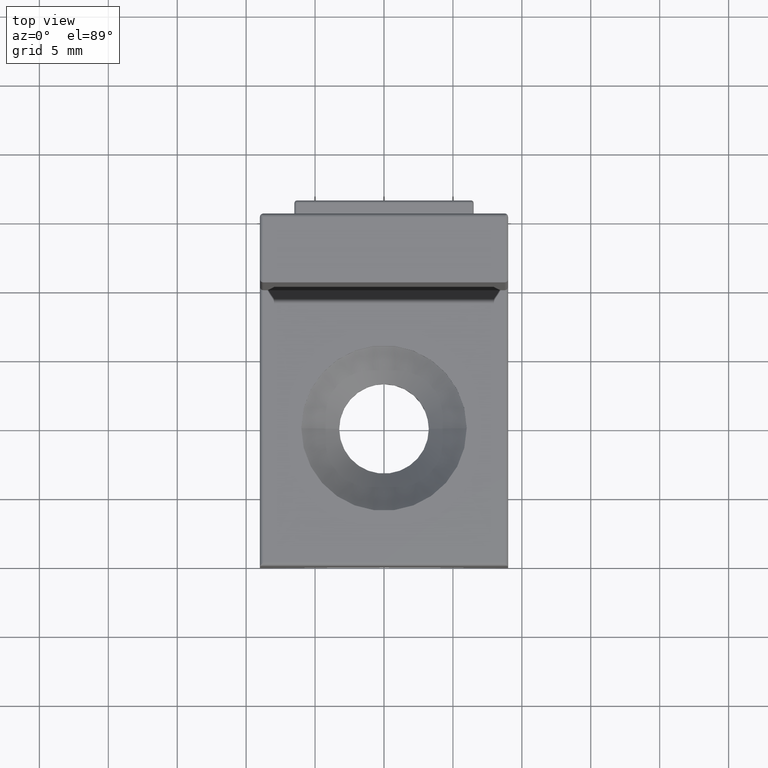
[diagram: clean part render]
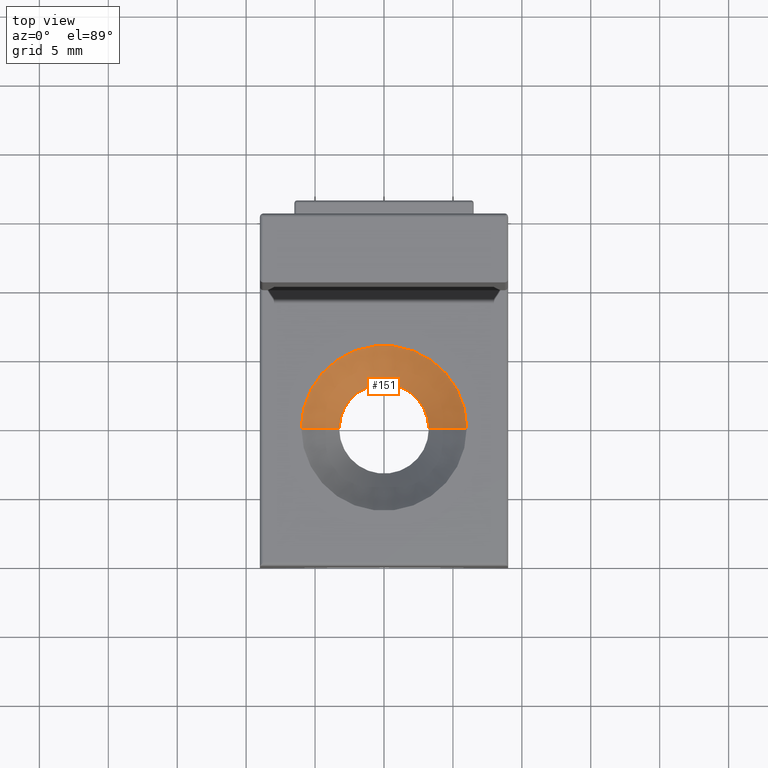
[diagram: same view with one face highlighted and labeled with its STEP entity id]
A machine part, top view. The second image highlights one B-rep face of the part: STEP entity #151.
In plain terms, the highlighted conical surface has half-angle 45 deg.
Its self-contained STEP definition (entity closure, byte-faithful):
#151 = ADVANCED_FACE ( 'NONE', ( #13129 ), #7850, .F. ) ;
#260 = DIRECTION ( 'NONE',  ( 1.000000000000000000, 0.0000000000000000000, 0.0000000000000000000 ) ) ;
#317 = CARTESIAN_POINT ( 'NONE',  ( 1.836970198721029600E-015, -15.00000000000000000, 7.000000000000000900 ) ) ;
#480 = EDGE_CURVE ( 'NONE', #2247, #7271, #7673, .T. ) ;
#1331 = DIRECTION ( 'NONE',  ( -0.0000000000000000000, -0.0000000000000000000, 1.000000000000000000 ) ) ;
#1627 = VECTOR ( 'NONE', #12971, 999.9999999999998900 ) ;
#1836 = LINE ( 'NONE', #2698, #10126 ) ;
#1909 = CIRCLE ( 'NONE', #11945, 6.000000000000000000 ) ;
#2003 = VERTEX_POINT ( 'NONE', #10369 ) ;
#2247 = VERTEX_POINT ( 'NONE', #11073 ) ;
#2698 = CARTESIAN_POINT ( 'NONE',  ( 6.000000000000001800, -15.00000000000000000, 7.000000000000000900 ) ) ;
#2739 = CARTESIAN_POINT ( 'NONE',  ( 1.836970198721029600E-015, -15.00000000000000000, 7.000000000000000900 ) ) ;
#3082 = ORIENTED_EDGE ( 'NONE', *, *, #480, .F. ) ;
#3334 = ORIENTED_EDGE ( 'NONE', *, *, #14187, .T. ) ;
#3817 = AXIS2_PLACEMENT_3D ( 'NONE', #2739, #8331, #4872 ) ;
#4872 = DIRECTION ( 'NONE',  ( 1.000000000000000000, 0.0000000000000000000, 0.0000000000000000000 ) ) ;
#6381 = EDGE_CURVE ( 'NONE', #7271, #2003, #12526, .T. ) ;
#7049 = CARTESIAN_POINT ( 'NONE',  ( 1.836970198721029600E-015, -15.00000000000000000, 4.250000000000002700 ) ) ;
#7271 = VERTEX_POINT ( 'NONE', #10995 ) ;
#7673 = CIRCLE ( 'NONE', #13636, 3.250000000000000900 ) ;
#7843 = ORIENTED_EDGE ( 'NONE', *, *, #11091, .T. ) ;
#7850 = CONICAL_SURFACE ( 'NONE', #3817, 6.000000000000000000, 0.7853981633974485000 ) ;
#8331 = DIRECTION ( 'NONE',  ( -0.0000000000000000000, -0.0000000000000000000, 1.000000000000000000 ) ) ;
#9068 = EDGE_LOOP ( 'NONE', ( #13632, #3082, #7843, #3334 ) ) ;
#9489 = CARTESIAN_POINT ( 'NONE',  ( -5.999999999999998200, -15.00000000000000000, 7.000000000000000900 ) ) ;
#10126 = VECTOR ( 'NONE', #14056, 999.9999999999998900 ) ;
#10369 = CARTESIAN_POINT ( 'NONE',  ( -5.999999999999998200, -15.00000000000000000, 7.000000000000000900 ) ) ;
#10995 = CARTESIAN_POINT ( 'NONE',  ( -3.249999999999999100, -15.00000000000000000, 4.250000000000002700 ) ) ;
#11073 = CARTESIAN_POINT ( 'NONE',  ( 3.250000000000002700, -15.00000000000000000, 4.250000000000002700 ) ) ;
#11091 = EDGE_CURVE ( 'NONE', #2247, #12717, #1836, .T. ) ;
#11945 = AXIS2_PLACEMENT_3D ( 'NONE', #317, #12562, #13700 ) ;
#12526 = LINE ( 'NONE', #9489, #1627 ) ;
#12562 = DIRECTION ( 'NONE',  ( -0.0000000000000000000, -0.0000000000000000000, 1.000000000000000000 ) ) ;
#12717 = VERTEX_POINT ( 'NONE', #13997 ) ;
#12971 = DIRECTION ( 'NONE',  ( -0.7071067811865477900, 8.659560562354936600E-017, 0.7071067811865473500 ) ) ;
#13129 = FACE_OUTER_BOUND ( 'NONE', #9068, .T. ) ;
#13632 = ORIENTED_EDGE ( 'NONE', *, *, #6381, .F. ) ;
#13636 = AXIS2_PLACEMENT_3D ( 'NONE', #7049, #1331, #260 ) ;
#13700 = DIRECTION ( 'NONE',  ( 1.000000000000000000, 0.0000000000000000000, 0.0000000000000000000 ) ) ;
#13997 = CARTESIAN_POINT ( 'NONE',  ( 6.000000000000001800, -15.00000000000000000, 7.000000000000000900 ) ) ;
#14056 = DIRECTION ( 'NONE',  ( 0.7071067811865477900, 0.0000000000000000000, 0.7071067811865473500 ) ) ;
#14187 = EDGE_CURVE ( 'NONE', #12717, #2003, #1909, .T. ) ;